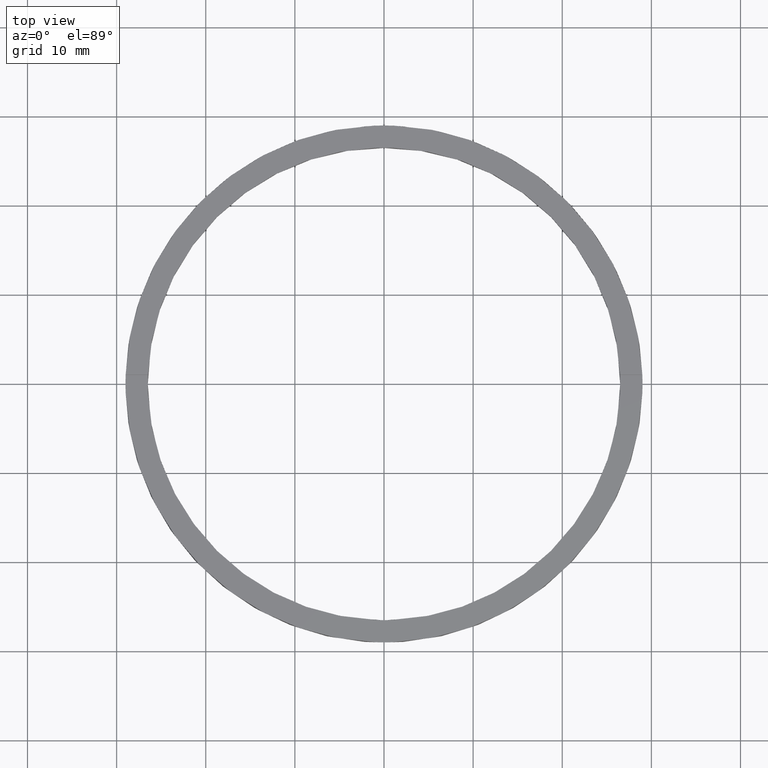
[diagram: clean part render]
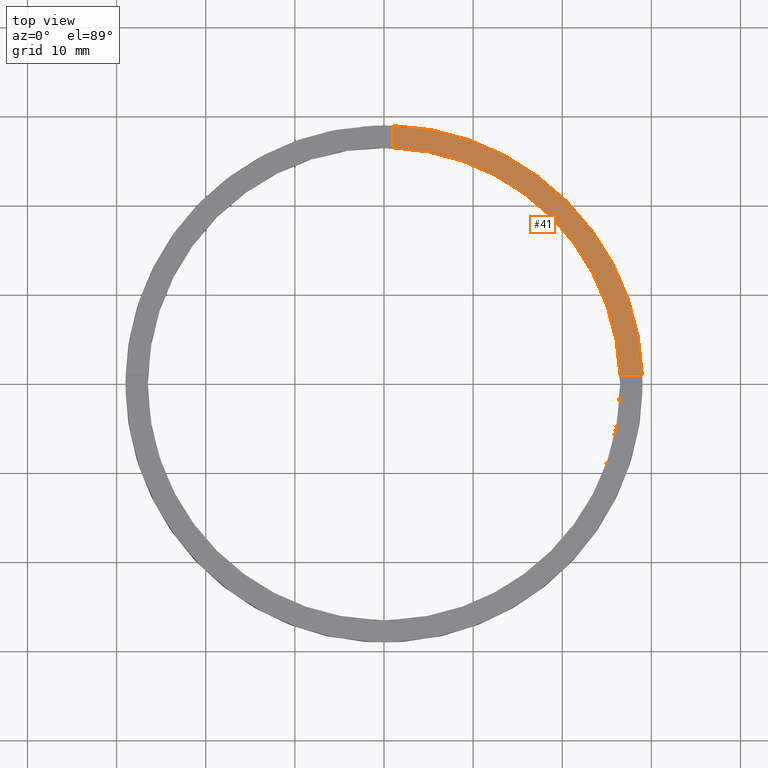
[diagram: same view with one face highlighted and labeled with its STEP entity id]
A machine part, top view. The second image highlights one B-rep face of the part: STEP entity #41.
In plain terms, the highlighted planar face has unit normal (0, 0, 1).
Its self-contained STEP definition (entity closure, byte-faithful):
#21 = VERTEX_POINT ( 'NONE', #319 ) ;
#37 = CARTESIAN_POINT ( 'NONE',  ( 0.9999999999999733546, 19.00000000000000355, 2.500000000000000000 ) ) ;
#41 = ADVANCED_FACE ( 'NONE', ( #614 ), #181, .T. ) ;
#71 = LINE ( 'NONE', #37, #323 ) ;
#85 = CIRCLE ( 'NONE', #361, 26.50000000000000355 ) ;
#96 = CARTESIAN_POINT ( 'NONE',  ( 0.9999999999999733546, 28.98275349237887966, 2.500000000000000000 ) ) ;
#100 = VECTOR ( 'NONE', #442, 1000.000000000000000 ) ;
#104 = DIRECTION ( 'NONE',  ( 1.000000000000000000, 0.000000000000000000, 0.000000000000000000 ) ) ;
#124 = EDGE_CURVE ( 'NONE', #726, #287, #337, .T. ) ;
#131 = CARTESIAN_POINT ( 'NONE',  ( 0.000000000000000000, 0.000000000000000000, 2.500000000000000000 ) ) ;
#152 = EDGE_CURVE ( 'NONE', #225, #21, #85, .T. ) ;
#160 = CARTESIAN_POINT ( 'NONE',  ( 0.000000000000000000, 0.000000000000000000, 2.500000000000000000 ) ) ;
#181 = PLANE ( 'NONE',  #433 ) ;
#215 = ORIENTED_EDGE ( 'NONE', *, *, #298, .F. ) ;
#225 = VERTEX_POINT ( 'NONE', #498 ) ;
#255 = AXIS2_PLACEMENT_3D ( 'NONE', #160, #648, #104 ) ;
#258 = DIRECTION ( 'NONE',  ( 0.000000000000000000, 1.000000000000000000, 0.000000000000000000 ) ) ;
#272 = CARTESIAN_POINT ( 'NONE',  ( 28.98275349237888321, 0.9999999999998432365, 2.500000000000000000 ) ) ;
#287 = VERTEX_POINT ( 'NONE', #96 ) ;
#292 = ORIENTED_EDGE ( 'NONE', *, *, #124, .T. ) ;
#298 = EDGE_CURVE ( 'NONE', #21, #287, #71, .T. ) ;
#319 = CARTESIAN_POINT ( 'NONE',  ( 0.9999999999999733546, 26.48112535373072518, 2.500000000000000000 ) ) ;
#323 = VECTOR ( 'NONE', #258, 1000.000000000000000 ) ;
#337 = CIRCLE ( 'NONE', #255, 29.00000000000000000 ) ;
#357 = DIRECTION ( 'NONE',  ( 0.000000000000000000, 0.000000000000000000, 1.000000000000000000 ) ) ;
#361 = AXIS2_PLACEMENT_3D ( 'NONE', #521, #357, #589 ) ;
#380 = DIRECTION ( 'NONE',  ( 0.000000000000000000, 0.000000000000000000, 1.000000000000000000 ) ) ;
#433 = AXIS2_PLACEMENT_3D ( 'NONE', #131, #380, #638 ) ;
#442 = DIRECTION ( 'NONE',  ( -1.000000000000000000, -4.336808689942018352E-17, -0.000000000000000000 ) ) ;
#452 = EDGE_CURVE ( 'NONE', #726, #225, #622, .T. ) ;
#487 = ORIENTED_EDGE ( 'NONE', *, *, #152, .F. ) ;
#498 = CARTESIAN_POINT ( 'NONE',  ( 26.48112535373072873, 0.9999999999998430145, 2.500000000000000000 ) ) ;
#521 = CARTESIAN_POINT ( 'NONE',  ( 0.000000000000000000, 0.000000000000000000, 2.500000000000000000 ) ) ;
#549 = ORIENTED_EDGE ( 'NONE', *, *, #452, .F. ) ;
#589 = DIRECTION ( 'NONE',  ( 1.000000000000000000, 0.000000000000000000, 0.000000000000000000 ) ) ;
#614 = FACE_OUTER_BOUND ( 'NONE', #658, .T. ) ;
#622 = LINE ( 'NONE', #635, #100 ) ;
#635 = CARTESIAN_POINT ( 'NONE',  ( 19.00000000000000000, 0.9999999999998427924, 2.500000000000000000 ) ) ;
#638 = DIRECTION ( 'NONE',  ( 1.000000000000000000, 0.000000000000000000, -0.000000000000000000 ) ) ;
#648 = DIRECTION ( 'NONE',  ( 0.000000000000000000, 0.000000000000000000, 1.000000000000000000 ) ) ;
#658 = EDGE_LOOP ( 'NONE', ( #215, #487, #549, #292 ) ) ;
#726 = VERTEX_POINT ( 'NONE', #272 ) ;